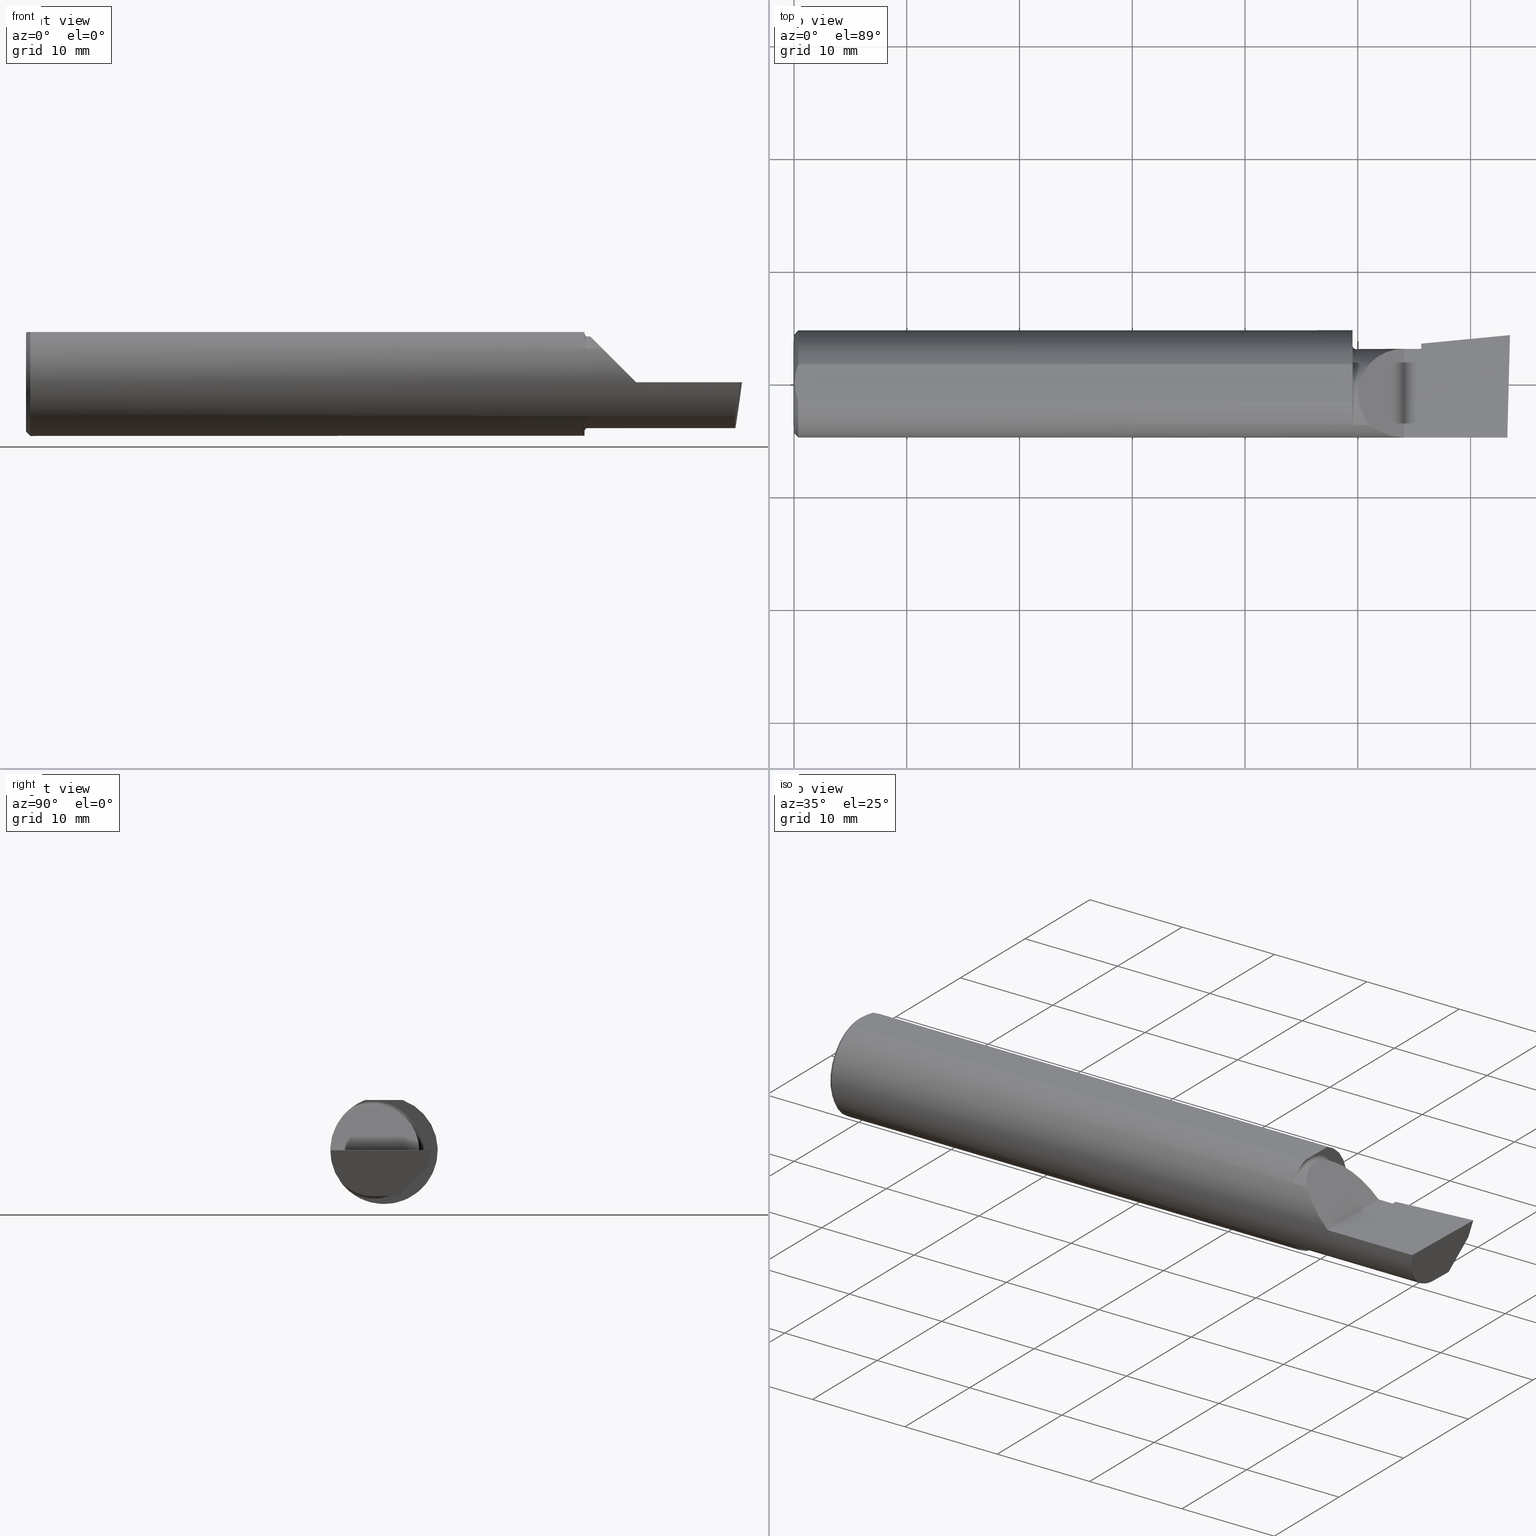
[diagram: canonical four-view strip — front | top / right | iso, engineering-drawing reading convention]
A machine part, canonical four-view strip (front | top / right | iso — engineering-drawing reading convention). The complete STEP part file that produces these views, byte-faithful:
ISO-10303-21;
HEADER;
FILE_DESCRIPTION (( 'STEP AP214' ),
    '1' );
FILE_NAME ('B360500.STEP',
    '2020-05-06T18:20:16',
    ( '' ),
    ( '' ),
    'SwSTEP 2.0',
    'SolidWorks 2018',
    '' );
FILE_SCHEMA (( 'AUTOMOTIVE_DESIGN' ));
ENDSEC;

DATA;
#1 = ORIENTED_EDGE ( 'NONE', *, *, #39, .F. ) ;
#2 = EDGE_LOOP ( 'NONE', ( #42, #467 ) ) ;
#3 = ORIENTED_EDGE ( 'NONE', *, *, #189, .T. ) ;
#4 = DIRECTION ( 'NONE',  ( -6.829619984160658816E-18, -1.000000000000000000, 0.0000000000000000000 ) ) ;
#5 = EDGE_CURVE ( 'NONE', #141, #226, #373, .T. ) ;
#6 = DIRECTION ( 'NONE',  ( 1.000000000000000000, 0.0000000000000000000, 0.0000000000000000000 ) ) ;
#7 = EDGE_CURVE ( 'NONE', #239, #587, #112, .T. ) ;
#8 = EDGE_LOOP ( 'NONE', ( #43, #38, #304, #400, #542, #413, #258, #424, #107, #454 ) ) ;
#9 = VERTEX_POINT ( 'NONE', #123 ) ;
#10 = DIRECTION ( 'NONE',  ( -1.000000000000000000, 6.829619984160658046E-18, 0.0000000000000000000 ) ) ;
#11 = LINE ( 'NONE', #372, #162 ) ;
#12 = AXIS2_PLACEMENT_3D ( 'NONE', #197, #356, #567 ) ;
#13 = CARTESIAN_POINT ( 'NONE',  ( 1.958780002058964076, -0.1452129146512406155, 0.1183784924451706522 ) ) ;
#14 = PLANE ( 'NONE',  #482 ) ;
#15 = ORIENTED_EDGE ( 'NONE', *, *, #328, .F. ) ;
#16 = CARTESIAN_POINT ( 'NONE',  ( 0.01499999999999999424, 0.0000000000000000000, 0.0000000000000000000 ) ) ;
#17 = DIRECTION ( 'NONE',  ( -0.06894566448119622548, 0.7160281025913035613, -0.6946583704589933683 ) ) ;
#18 = CARTESIAN_POINT ( 'NONE',  ( 0.01499999999999999424, 0.0000000000000000000, 0.0000000000000000000 ) ) ;
#19 = ADVANCED_FACE ( 'NONE', ( #104 ), #333, .F. ) ;
#20 = ORIENTED_EDGE ( 'NONE', *, *, #535, .F. ) ;
#21 = FACE_OUTER_BOUND ( 'NONE', #484, .T. ) ;
#22 = DIMENSIONAL_EXPONENTS ( 1.000000000000000000, 0.0000000000000000000, 0.0000000000000000000, 0.0000000000000000000, 0.0000000000000000000, 0.0000000000000000000, 0.0000000000000000000 ) ;
#23 = EDGE_CURVE ( 'NONE', #203, #224, #77, .T. ) ;
#24 = CARTESIAN_POINT ( 'NONE',  ( 0.01125230581755086272, 0.05532998191409922023, 0.1753500000000000059 ) ) ;
#25 = ORIENTED_EDGE ( 'NONE', *, *, #292, .F. ) ;
#26 = SURFACE_STYLE_USAGE ( .BOTH. , #103 ) ;
#27 = PRESENTATION_LAYER_ASSIGNMENT (  '', '', ( #426 ) ) ;
#28 = PRODUCT_RELATED_PRODUCT_CATEGORY ( 'part', '', ( #430 ) ) ;
#29 = CARTESIAN_POINT ( 'NONE',  ( 1.959999999999999964, -0.03739999999999997493, 0.0000000000000000000 ) ) ;
#30 = DIRECTION ( 'NONE',  ( -4.755568962650852027E-18, -0.6963153109074922131, -0.7177360153954949196 ) ) ;
#31 = EDGE_CURVE ( 'NONE', #9, #97, #578, .T. ) ;
#32 = CARTESIAN_POINT ( 'NONE',  ( 2.477223734188808368, -0.1454917112299465021, -0.1180346748349054287 ) ) ;
#33 = CARTESIAN_POINT ( 'NONE',  ( 0.008244775919947424855, 0.04453482769755855164, 0.1753499999999999504 ) ) ;
#34 = CARTESIAN_POINT ( 'NONE',  ( 2.189999999999999947, 0.1039332780936034623, -0.07900565447499380278 ) ) ;
#35 = VECTOR ( 'NONE', #410, 39.37007874015748143 ) ;
#36 = CARTESIAN_POINT ( 'NONE',  ( 2.500000000000000000, 0.2373500000000000332, 0.1753499999999999504 ) ) ;
#37 = LINE ( 'NONE', #416, #441 ) ;
#38 = ORIENTED_EDGE ( 'NONE', *, *, #115, .T. ) ;
#39 = EDGE_CURVE ( 'NONE', #553, #524, #259, .T. ) ;
#40 = CARTESIAN_POINT ( 'NONE',  ( 2.492483720199198949, 0.1538199878950242960, -0.05760614975163731027 ) ) ;
#41 = DIRECTION ( 'NONE',  ( -1.000000000000000000, -0.0000000000000000000, -0.0000000000000000000 ) ) ;
#42 = ORIENTED_EDGE ( 'NONE', *, *, #322, .T. ) ;
#43 = ORIENTED_EDGE ( 'NONE', *, *, #337, .F. ) ;
#44 = DIRECTION ( 'NONE',  ( 0.02617694830791552144, 0.9996573249755561497, -2.665804247648098212E-18 ) ) ;
#45 = LINE ( 'NONE', #48, #479 ) ;
#46 = CARTESIAN_POINT ( 'NONE',  ( 2.500000000000000000, -0.2500000000000000555, 6.829619984160658046E-17 ) ) ;
#47 = LINE ( 'NONE', #71, #171 ) ;
#48 = CARTESIAN_POINT ( 'NONE',  ( 2.189999999999999947, 0.1039332780936034623, -0.07900565447499380278 ) ) ;
#49 = EDGE_CURVE ( 'NONE', #141, #159, #173, .T. ) ;
#50 = CARTESIAN_POINT ( 'NONE',  ( 1.957909242887170498, -0.1445870704379410010, -0.1191421054870966528 ) ) ;
#51 = ORIENTED_EDGE ( 'NONE', *, *, #198, .T. ) ;
#52 = ADVANCED_FACE ( 'NONE', ( #533 ), #559, .T. ) ;
#53 = EDGE_CURVE ( 'NONE', #501, #553, #591, .T. ) ;
#54 = CARTESIAN_POINT ( 'NONE',  ( 1.950483388365423787, -0.1180160148311101415, -0.1458664675357417562 ) ) ;
#55 = CARTESIAN_POINT ( 'NONE',  ( 1.959343186359710165, -0.1454917112302220872, 0.1180346748345677127 ) ) ;
#56 = DIRECTION ( 'NONE',  ( 0.0000000000000000000, -1.000000000000000000, 0.0000000000000000000 ) ) ;
#57 = EDGE_LOOP ( 'NONE', ( #471, #437, #177, #397, #25, #398 ) ) ;
#58 = ORIENTED_EDGE ( 'NONE', *, *, #154, .T. ) ;
#59 = CARTESIAN_POINT ( 'NONE',  ( 0.004115035183746292881, 0.02255629470626744487, 0.1753499999999999781 ) ) ;
#60 = EDGE_CURVE ( 'NONE', #224, #432, #200, .T. ) ;
#61 = CARTESIAN_POINT ( 'NONE',  ( 0.0000000000000000000, 0.0000000000000000000, -0.1723499999999996424 ) ) ;
#62 = LINE ( 'NONE', #271, #256 ) ;
#63 = ORIENTED_EDGE ( 'NONE', *, *, #557, .T. ) ;
#64 = ORIENTED_EDGE ( 'NONE', *, *, #189, .F. ) ;
#65 = PLANE ( 'NONE',  #85 ) ;
#66 = EDGE_CURVE ( 'NONE', #99, #215, #118, .T. ) ;
#67 = EDGE_LOOP ( 'NONE', ( #157, #20, #202 ) ) ;
#68 = DIRECTION ( 'NONE',  ( -6.829619984160658046E-18, -1.000000000000000000, 0.0000000000000000000 ) ) ;
#69 = EDGE_CURVE ( 'NONE', #581, #432, #62, .T. ) ;
#70 = ORIENTED_EDGE ( 'NONE', *, *, #386, .F. ) ;
#71 = CARTESIAN_POINT ( 'NONE',  ( 1.093080678464946939E-18, 0.1226499999999999535, 3.267291166268304703E-16 ) ) ;
#72 = CARTESIAN_POINT ( 'NONE',  ( 2.189999999999999947, -0.2500000000000000555, 1.003418815229743595E-16 ) ) ;
#73 = LINE ( 'NONE', #34, #319 ) ;
#74 = DIRECTION ( 'NONE',  ( -0.0000000000000000000, 0.0000000000000000000, 1.000000000000000000 ) ) ;
#75 = UNCERTAINTY_MEASURE_WITH_UNIT (LENGTH_MEASURE( 1.000000000000000082E-05 ), #273, 'distance_accuracy_value', 'NONE');
#76 =( NAMED_UNIT ( * ) PLANE_ANGLE_UNIT ( ) SI_UNIT ( $, .RADIAN. ) );
#77 = LINE ( 'NONE', #40, #94 ) ;
#78 = EDGE_CURVE ( 'NONE', #159, #524, #84, .T. ) ;
#79 = CARTESIAN_POINT ( 'NONE',  ( 2.474893613600468445, -0.03740000000000000269, -0.1600499999999999701 ) ) ;
#80 = LENGTH_MEASURE_WITH_UNIT ( LENGTH_MEASURE( 0.02539999999999999897 ), #158 );
#81 = CARTESIAN_POINT ( 'NONE',  ( 2.075000000000000178, -0.1454917112299465021, -0.1180346748349054287 ) ) ;
#82 = LINE ( 'NONE', #463, #552 ) ;
#83 = AXIS2_PLACEMENT_3D ( 'NONE', #293, #434, #121 ) ;
#84 = LINE ( 'NONE', #447, #35 ) ;
#85 = AXIS2_PLACEMENT_3D ( 'NONE', #36, #406, #142 ) ;
#86 = CARTESIAN_POINT ( 'NONE',  ( 1.952845212421890020, -0.1330145888620355987, 0.1320338710448782094 ) ) ;
#87 = ORIENTED_EDGE ( 'NONE', *, *, #60, .F. ) ;
#88 = DIRECTION ( 'NONE',  ( 0.1240019227989986178, 0.3022330132596678376, 0.9451342385281217284 ) ) ;
#89 = ORIENTED_EDGE ( 'NONE', *, *, #115, .F. ) ;
#90 = DIRECTION ( 'NONE',  ( 0.0000000000000000000, -1.000000000000000000, 0.0000000000000000000 ) ) ;
#91 = CARTESIAN_POINT ( 'NONE',  ( 0.01499999999999999424, 0.0000000000000000000, -0.1873499999999999888 ) ) ;
#92 = DIRECTION ( 'NONE',  ( 0.0000000000000000000, 1.000000000000000000, 0.0000000000000000000 ) ) ;
#93 = ADVANCED_FACE ( 'NONE', ( #458 ), #549, .F. ) ;
#94 = VECTOR ( 'NONE', #129, 39.37007874015748854 ) ;
#95 = DIRECTION ( 'NONE',  ( 1.000000000000000000, -6.829619984160658046E-18, 0.0000000000000000000 ) ) ;
#96 = PRODUCT_DEFINITION_CONTEXT ( 'detailed design', #269, 'design' ) ;
#97 = VERTEX_POINT ( 'NONE', #287 ) ;
#98 = FACE_OUTER_BOUND ( 'NONE', #193, .T. ) ;
#99 = VERTEX_POINT ( 'NONE', #111 ) ;
#100 = DIRECTION ( 'NONE',  ( 0.0000000000000000000, 0.6963153109074924352, 0.7177360153954949196 ) ) ;
#101 = ADVANCED_FACE ( 'NONE', ( #296 ), #238, .F. ) ;
#102 = CARTESIAN_POINT ( 'NONE',  ( 1.949999999999999956, -0.1013606951871659639, 0.1575627873933893863 ) ) ;
#103 = SURFACE_SIDE_STYLE ('',( #368 ) ) ;
#104 = FACE_OUTER_BOUND ( 'NONE', #518, .T. ) ;
#105 = AXIS2_PLACEMENT_3D ( 'NONE', #537, #164, #146 ) ;
#106 = VERTEX_POINT ( 'NONE', #116 ) ;
#107 = ORIENTED_EDGE ( 'NONE', *, *, #331, .T. ) ;
#108 = COLOUR_RGB ( '',0.7529411764705882248, 0.7529411764705882248, 0.7529411764705882248 ) ;
#109 = MECHANICAL_DESIGN_GEOMETRIC_PRESENTATION_REPRESENTATION (  '', ( #426 ), #350 ) ;
#110 = CARTESIAN_POINT ( 'NONE',  ( 0.01499999999999997863, -0.06597272163553657975, 0.1753499999999999781 ) ) ;
#111 = CARTESIAN_POINT ( 'NONE',  ( 2.189999999999999947, 0.1226499999999999674, 3.267291166268305196E-16 ) ) ;
#112 = LINE ( 'NONE', #516, #551 ) ;
#113 = CARTESIAN_POINT ( 'NONE',  ( 0.0000000000000000000, 2.202527268266512578E-17, 0.1723499999999996424 ) ) ;
#114 = CARTESIAN_POINT ( 'NONE',  ( 1.959999999999999964, -0.1454917112299459192, 0.1180346748349059144 ) ) ;
#115 = EDGE_CURVE ( 'NONE', #106, #264, #405, .T. ) ;
#116 = CARTESIAN_POINT ( 'NONE',  ( 2.477223734188808368, -0.1454917112299465021, -0.1180346748349054287 ) ) ;
#117 = CARTESIAN_POINT ( 'NONE',  ( 0.01499999999999999424, 0.0000000000000000000, 0.0000000000000000000 ) ) ;
#118 = LINE ( 'NONE', #72, #207 ) ;
#119 = VECTOR ( 'NONE', #355, 39.37007874015748143 ) ;
#120 = EDGE_LOOP ( 'NONE', ( #233, #240, #417, #460, #369 ) ) ;
#121 = DIRECTION ( 'NONE',  ( -0.7071067811865511255, 0.0000000000000000000, 0.7071067811865437980 ) ) ;
#122 = CARTESIAN_POINT ( 'NONE',  ( 1.958770022656896037, -0.1452078353828883672, -0.1183847404910809836 ) ) ;
#123 = CARTESIAN_POINT ( 'NONE',  ( 2.474893613600468445, -0.03740000000000000269, -0.1600499999999999701 ) ) ;
#124 = CARTESIAN_POINT ( 'NONE',  ( 2.492127980275578913, 0.1514633278254541859, -0.05999999999999999084 ) ) ;
#125 = ORIENTED_EDGE ( 'NONE', *, *, #23, .T. ) ;
#126 = EDGE_CURVE ( 'NONE', #185, #127, #45, .T. ) ;
#127 = VERTEX_POINT ( 'NONE', #528 ) ;
#128 = CARTESIAN_POINT ( 'NONE',  ( 1.902393788885672565, -0.02584108761840661975, 0.2276062111143251077 ) ) ;
#129 = DIRECTION ( 'NONE',  ( 0.1053106618242490577, 0.6976485211320153645, 0.7086580314005129777 ) ) ;
#130 = CARTESIAN_POINT ( 'NONE',  ( 1.959999999999999964, -0.1454917112299459747, -0.1180346748349059005 ) ) ;
#131 = AXIS2_PLACEMENT_3D ( 'NONE', #339, #506, #326 ) ;
#132 = DIRECTION ( 'NONE',  ( -1.000000000000000000, -0.0000000000000000000, -0.0000000000000000000 ) ) ;
#133 = EDGE_CURVE ( 'NONE', #203, #9, #556, .T. ) ;
#134 = ORIENTED_EDGE ( 'NONE', *, *, #508, .T. ) ;
#135 = AXIS2_PLACEMENT_3D ( 'NONE', #489, #453, #340 ) ;
#136 = FACE_OUTER_BOUND ( 'NONE', #486, .T. ) ;
#137 = CARTESIAN_POINT ( 'NONE',  ( 1.956664569472227777, -0.1431262185210681326, -0.1208975608635242949 ) ) ;
#138 = AXIS2_PLACEMENT_3D ( 'NONE', #317, #74, #192 ) ;
#139 = FILL_AREA_STYLE ('',( #554 ) ) ;
#140 = CARTESIAN_POINT ( 'NONE',  ( 0.0000000000000000000, -0.03739999999999998881, 0.0000000000000000000 ) ) ;
#141 = VERTEX_POINT ( 'NONE', #61 ) ;
#142 = DIRECTION ( 'NONE',  ( 0.0000000000000000000, 1.000000000000000000, -1.438723400918613551E-16 ) ) ;
#143 = LINE ( 'NONE', #510, #307 ) ;
#144 = CIRCLE ( 'NONE', #300, 0.1700499999999999512 ) ;
#145 = CIRCLE ( 'NONE', #490, 0.1600499999999999701 ) ;
#146 = DIRECTION ( 'NONE',  ( 1.000000000000000000, 0.0000000000000000000, 0.0000000000000000000 ) ) ;
#147 = ADVANCED_FACE ( 'NONE', ( #267 ), #277, .T. ) ;
#148 = CARTESIAN_POINT ( 'NONE',  ( 2.011965325165096630, -0.1454917112299495829, 0.1180346748349020841 ) ) ;
#149 =( GEOMETRIC_REPRESENTATION_CONTEXT ( 3 ) GLOBAL_UNCERTAINTY_ASSIGNED_CONTEXT ( ( #457 ) ) GLOBAL_UNIT_ASSIGNED_CONTEXT ( ( #359, #76, #190 ) ) REPRESENTATION_CONTEXT ( 'NONE', 'WORKASPACE' ) );
#150 = ORIENTED_EDGE ( 'NONE', *, *, #328, .T. ) ;
#151 = LINE ( 'NONE', #214, #569 ) ;
#152 = PLANE ( 'NONE',  #367 ) ;
#153 =( NAMED_UNIT ( * ) SI_UNIT ( $, .STERADIAN. ) SOLID_ANGLE_UNIT ( ) );
#154 = EDGE_CURVE ( 'NONE', #501, #343, #204, .T. ) ;
#155 = CARTESIAN_POINT ( 'NONE',  ( 0.0000000000000000000, 0.0000000000000000000, 0.0000000000000000000 ) ) ;
#156 = PRODUCT_DEFINITION ( 'UNKNOWN', '', #344, #96 ) ;
#157 = ORIENTED_EDGE ( 'NONE', *, *, #257, .F. ) ;
#158 =( LENGTH_UNIT ( ) NAMED_UNIT ( * ) SI_UNIT ( $, .METRE. ) );
#159 = VERTEX_POINT ( 'NONE', #113 ) ;
#160 = FACE_OUTER_BOUND ( 'NONE', #419, .T. ) ;
#161 = EDGE_CURVE ( 'NONE', #524, #288, #582, .T. ) ;
#162 = VECTOR ( 'NONE', #448, 39.37007874015748143 ) ;
#163 = DIRECTION ( 'NONE',  ( 0.0000000000000000000, -1.000000000000000000, 0.0000000000000000000 ) ) ;
#164 = DIRECTION ( 'NONE',  ( 0.0000000000000000000, 0.0000000000000000000, 1.000000000000000000 ) ) ;
#165 = ORIENTED_EDGE ( 'NONE', *, *, #49, .T. ) ;
#166 = DIRECTION ( 'NONE',  ( 0.0000000000000000000, 0.0000000000000000000, 1.000000000000000000 ) ) ;
#167 =( GEOMETRIC_REPRESENTATION_CONTEXT ( 3 ) GLOBAL_UNCERTAINTY_ASSIGNED_CONTEXT ( ( #201 ) ) GLOBAL_UNIT_ASSIGNED_CONTEXT ( ( #577, #593, #446 ) ) REPRESENTATION_CONTEXT ( 'NONE', 'WORKASPACE' ) );
#168 = ORIENTED_EDGE ( 'NONE', *, *, #23, .F. ) ;
#169 = DIRECTION ( 'NONE',  ( -6.829619984160658046E-18, -1.000000000000000000, 0.0000000000000000000 ) ) ;
#170 = EDGE_CURVE ( 'NONE', #343, #493, #144, .T. ) ;
#171 = VECTOR ( 'NONE', #297, 39.37007874015748143 ) ;
#172 = DIRECTION ( 'NONE',  ( 0.0000000000000000000, 0.0000000000000000000, 1.000000000000000000 ) ) ;
#173 = CIRCLE ( 'NONE', #346, 0.1723499999999996424 ) ;
#174 = CARTESIAN_POINT ( 'NONE',  ( 1.954992410154055671, -0.1399157128067675115, -0.1246181391956575207 ) ) ;
#175 = ORIENTED_EDGE ( 'NONE', *, *, #495, .F. ) ;
#176 = DIRECTION ( 'NONE',  ( -1.000000000000000000, 6.829619984160658046E-18, -0.0000000000000000000 ) ) ;
#177 = ORIENTED_EDGE ( 'NONE', *, *, #505, .F. ) ;
#178 = LINE ( 'NONE', #213, #276 ) ;
#179 = DIRECTION ( 'NONE',  ( -6.829619984160658046E-18, -1.000000000000000000, 0.0000000000000000000 ) ) ;
#180 = CARTESIAN_POINT ( 'NONE',  ( 2.500188977433833504, 0.1711105994646693884, 0.001440373173034959625 ) ) ;
#181 = PRODUCT_CONTEXT ( 'NONE', #395, 'mechanical' ) ;
#182 = CARTESIAN_POINT ( 'NONE',  ( 2.189999999999999947, 0.09838681685089194218, -0.08472274115904374070 ) ) ;
#183 = AXIS2_PLACEMENT_3D ( 'NONE', #237, #377, #536 ) ;
#184 = DIRECTION ( 'NONE',  ( 0.0000000000000000000, 1.000000000000000000, 0.0000000000000000000 ) ) ;
#185 = VERTEX_POINT ( 'NONE', #230 ) ;
#186 = AXIS2_PLACEMENT_3D ( 'NONE', #155, #6, #409 ) ;
#187 = CARTESIAN_POINT ( 'NONE',  ( 2.129999999999999893, -0.1873499999999999888, 1.065442715258197396E-16 ) ) ;
#188 = MANIFOLD_SOLID_BREP ( 'C741EA0A-60D3-416e-B0B6-B22296563735-GAAFaceID8', #242 ) ;
#189 = EDGE_CURVE ( 'NONE', #226, #553, #290, .T. ) ;
#190 =( NAMED_UNIT ( * ) SI_UNIT ( $, .STERADIAN. ) SOLID_ANGLE_UNIT ( ) );
#191 = ADVANCED_FACE ( 'NONE', ( #160 ), #390, .T. ) ;
#192 = DIRECTION ( 'NONE',  ( 1.000000000000000000, 0.0000000000000000000, 0.0000000000000000000 ) ) ;
#193 = EDGE_LOOP ( 'NONE', ( #168, #336, #306, #274, #334, #425 ) ) ;
#194 = CONICAL_SURFACE ( 'NONE', #12, 0.1873499999999999888, 0.7853981633974602694 ) ;
#195 = ORIENTED_EDGE ( 'NONE', *, *, #161, .F. ) ;
#196 = CARTESIAN_POINT ( 'NONE',  ( 0.004093196532652216939, -0.02240707710020816909, 0.1753499999999999504 ) ) ;
#197 = CARTESIAN_POINT ( 'NONE',  ( 0.01499999999999999424, 0.0000000000000000000, 0.0000000000000000000 ) ) ;
#198 = EDGE_CURVE ( 'NONE', #97, #127, #143, .T. ) ;
#199 = CARTESIAN_POINT ( 'NONE',  ( 3.377502344341257155E-32, -0.1873499999999999610, 3.267291166268304703E-16 ) ) ;
#200 = LINE ( 'NONE', #180, #310 ) ;
#201 = UNCERTAINTY_MEASURE_WITH_UNIT (LENGTH_MEASURE( 1.000000000000000082E-05 ), #577, 'distance_accuracy_value', 'NONE');
#202 = ORIENTED_EDGE ( 'NONE', *, *, #483, .T. ) ;
#203 = VERTEX_POINT ( 'NONE', #404 ) ;
#204 = CIRCLE ( 'NONE', #243, 0.1873499999999999888 ) ;
#205 = PRESENTATION_LAYER_ASSIGNMENT (  '', '', ( #206 ) ) ;
#206 = STYLED_ITEM ( 'NONE', ( #562 ), #573 ) ;
#207 = VECTOR ( 'NONE', #462, 39.37007874015748143 ) ;
#208 = CARTESIAN_POINT ( 'NONE',  ( 0.0000000000000000000, 0.0000000000000000000, 0.0000000000000000000 ) ) ;
#209 = ORIENTED_EDGE ( 'NONE', *, *, #444, .T. ) ;
#210 = AXIS2_PLACEMENT_3D ( 'NONE', #140, #515, #4 ) ;
#211 = EDGE_LOOP ( 'NONE', ( #150, #544, #209, #364 ) ) ;
#212 = CARTESIAN_POINT ( 'NONE',  ( 2.472657716785286119, -0.1026153499216720943, -0.1643501480114536728 ) ) ;
#213 = CARTESIAN_POINT ( 'NONE',  ( 0.0000000000000000000, 0.06597272163553663527, 0.1753499999999999781 ) ) ;
#214 = CARTESIAN_POINT ( 'NONE',  ( 2.491169618080469217, 0.05430702260361124772, -0.1600499999999999701 ) ) ;
#215 = VERTEX_POINT ( 'NONE', #255 ) ;
#216 = VECTOR ( 'NONE', #312, 39.37007874015748143 ) ;
#217 = CARTESIAN_POINT ( 'NONE',  ( 1.954404192622242409, -0.1382376748423442825, -0.1264781021717289455 ) ) ;
#218 = VERTEX_POINT ( 'NONE', #301 ) ;
#219 = SURFACE_STYLE_FILL_AREA ( #351 ) ;
#220 = PLANE ( 'NONE',  #502 ) ;
#221 = CIRCLE ( 'NONE', #330, 0.1873499999999999888 ) ;
#222 = CARTESIAN_POINT ( 'NONE',  ( 2.189999999999999947, -0.03740000000000000269, 0.0000000000000000000 ) ) ;
#223 = CARTESIAN_POINT ( 'NONE',  ( 1.949999999999999956, -0.1013606951871659639, -0.1575627873933893863 ) ) ;
#224 = VERTEX_POINT ( 'NONE', #124 ) ;
#225 = CARTESIAN_POINT ( 'NONE',  ( 2.511712141217646632, 0.1533490680423130470, -0.05999999999999999084 ) ) ;
#226 = VERTEX_POINT ( 'NONE', #545 ) ;
#227 = CARTESIAN_POINT ( 'NONE',  ( 1.952858161161656891, -0.1330631366558192585, -0.1319833113027353566 ) ) ;
#228 = CARTESIAN_POINT ( 'NONE',  ( 0.0000000000000000000, 0.0000000000000000000, 0.0000000000000000000 ) ) ;
#229 = CARTESIAN_POINT ( 'NONE',  ( 2.189999999999999947, 0.1408003950587628228, 0.0000000000000000000 ) ) ;
#230 = CARTESIAN_POINT ( 'NONE',  ( 2.189999999999999947, 0.05139684578702525403, -0.1331582617725060591 ) ) ;
#231 = FACE_OUTER_BOUND ( 'NONE', #57, .T. ) ;
#232 = DIRECTION ( 'NONE',  ( 0.7071067811865390240, 0.0000000000000000000, -0.7071067811865560104 ) ) ;
#233 = ORIENTED_EDGE ( 'NONE', *, *, #262, .F. ) ;
#234 = VECTOR ( 'NONE', #348, 39.37007874015748143 ) ;
#235 = EDGE_CURVE ( 'NONE', #288, #570, #178, .T. ) ;
#236 = FILL_AREA_STYLE_COLOUR ( '', #108 ) ;
#237 = CARTESIAN_POINT ( 'NONE',  ( 0.0000000000000000000, 0.0000000000000000000, 0.0000000000000000000 ) ) ;
#238 = TOROIDAL_SURFACE ( 'NONE', #470, 0.1700499999999999512, 0.009999999999999807654 ) ;
#239 = VERTEX_POINT ( 'NONE', #391 ) ;
#240 = ORIENTED_EDGE ( 'NONE', *, *, #78, .T. ) ;
#241 = CARTESIAN_POINT ( 'NONE',  ( 1.967758842172324663, 0.1226499999999999674, 0.1622411578276735378 ) ) ;
#242 = CLOSED_SHELL ( 'NONE', ( #383, #295, #475, #19, #191, #252, #474, #93, #284, #481, #101, #420, #52, #147, #571, #250, #385 ) ) ;
#243 = AXIS2_PLACEMENT_3D ( 'NONE', #539, #95, #184 ) ;
#244 = CIRCLE ( 'NONE', #473, 0.1600499999999999701 ) ;
#245 = APPLICATION_PROTOCOL_DEFINITION ( 'draft international standard', 'automotive_design', 1998, #395 ) ;
#246 = CONICAL_SURFACE ( 'NONE', #381, 0.1873499999999999888, 0.7853981633974602694 ) ;
#247 = DIRECTION ( 'NONE',  ( -1.000000000000000000, -0.0000000000000000000, -0.0000000000000000000 ) ) ;
#248 = ORIENTED_EDGE ( 'NONE', *, *, #5, .T. ) ;
#249 = CARTESIAN_POINT ( 'NONE',  ( 0.01499999999999999424, 0.06597272163553663527, 0.1753499999999999781 ) ) ;
#250 = ADVANCED_FACE ( 'NONE', ( #268 ), #575, .F. ) ;
#251 = AXIS2_PLACEMENT_3D ( 'NONE', #507, #411, #546 ) ;
#252 = ADVANCED_FACE ( 'NONE', ( #136 ), #65, .F. ) ;
#253 = DIRECTION ( 'NONE',  ( -6.829619984160658046E-18, -1.000000000000000000, 1.438723400918613551E-16 ) ) ;
#254 = FACE_OUTER_BOUND ( 'NONE', #509, .T. ) ;
#255 = CARTESIAN_POINT ( 'NONE',  ( 2.189999999999999947, 0.1408003950587674857, 3.286754617377316716E-16 ) ) ;
#256 = VECTOR ( 'NONE', #44, 39.37007874015748854 ) ;
#257 = EDGE_CURVE ( 'NONE', #218, #375, #547, .T. ) ;
#258 = ORIENTED_EDGE ( 'NONE', *, *, #294, .T. ) ;
#259 = B_SPLINE_CURVE_WITH_KNOTS ( 'NONE', 3,
 ( #588, #540, #450, #196, #285, #374 ),
 .UNSPECIFIED., .F., .F.,
 ( 4, 2, 4 ),
 ( 0.001779942938356815062, 0.002629978419973711019, 0.003480013901590607410 ),
 .UNSPECIFIED. ) ;
#260 = CARTESIAN_POINT ( 'NONE',  ( 2.500000000000034195, 0.1706500000000318595, 9.290684216734176359E-14 ) ) ;
#261 = CARTESIAN_POINT ( 'NONE',  ( 1.949999999999999956, -0.03740000000000000269, 0.0000000000000000000 ) ) ;
#262 = EDGE_CURVE ( 'NONE', #159, #141, #520, .T. ) ;
#263 = CARTESIAN_POINT ( 'NONE',  ( 2.086590019116437045, -0.1873499999999999888, 0.04340998088356271684 ) ) ;
#264 = VERTEX_POINT ( 'NONE', #130 ) ;
#265 = EDGE_LOOP ( 'NONE', ( #504, #555, #58, #418 ) ) ;
#266 = ORIENTED_EDGE ( 'NONE', *, *, #66, .T. ) ;
#267 = FACE_OUTER_BOUND ( 'NONE', #526, .T. ) ;
#268 = FACE_OUTER_BOUND ( 'NONE', #2, .T. ) ;
#269 = APPLICATION_CONTEXT ( 'automotive_design' ) ;
#270 = FACE_OUTER_BOUND ( 'NONE', #574, .T. ) ;
#271 = CARTESIAN_POINT ( 'NONE',  ( 2.488992440003207296, -0.2497117568972554158, 6.943408617627041469E-17 ) ) ;
#272 = CARTESIAN_POINT ( 'NONE',  ( 1.959999999999999964, -0.1454917112299459192, 0.1180346748349059144 ) ) ;
#273 =( CONVERSION_BASED_UNIT ( 'INCH', #80 ) LENGTH_UNIT ( ) NAMED_UNIT ( #563 ) );
#274 = ORIENTED_EDGE ( 'NONE', *, *, #371, .F. ) ;
#275 = CARTESIAN_POINT ( 'NONE',  ( 2.490625440078237940, -0.1873499999999999888, 6.926778495256700803E-17 ) ) ;
#276 = VECTOR ( 'NONE', #589, 39.37007874015748143 ) ;
#277 = PLANE ( 'NONE',  #251 ) ;
#278 = VECTOR ( 'NONE', #305, 39.37007874015748854 ) ;
#279 = CARTESIAN_POINT ( 'NONE',  ( 2.480648201915109485, -0.1728409665178087251, -0.08432347972837191119 ) ) ;
#280 = ORIENTED_EDGE ( 'NONE', *, *, #393, .F. ) ;
#281 = CARTESIAN_POINT ( 'NONE',  ( 1.957567572594821836, -0.1442269357022580301, -0.1195781817710038913 ) ) ;
#282 = DIRECTION ( 'NONE',  ( -1.000000000000000000, 5.691349986800549142E-18, -0.0000000000000000000 ) ) ;
#283 = PLANE ( 'NONE',  #186 ) ;
#284 = ADVANCED_FACE ( 'NONE', ( #254 ), #283, .F. ) ;
#285 = CARTESIAN_POINT ( 'NONE',  ( 0.003000000000000172667, -0.01126410975715121283, 0.1753500000000000059 ) ) ;
#286 = ORIENTED_EDGE ( 'NONE', *, *, #438, .T. ) ;
#287 = CARTESIAN_POINT ( 'NONE',  ( 2.189999999999999947, -0.03740000000000000269, -0.1600499999999999701 ) ) ;
#288 = VERTEX_POINT ( 'NONE', #382 ) ;
#289 = CARTESIAN_POINT ( 'NONE',  ( 1.956674049009440752, -0.1431412424162798736, 0.1208797671938532381 ) ) ;
#290 = CIRCLE ( 'NONE', #353, 0.1873499999999999888 ) ;
#291 =( BOUNDED_CURVE ( )  B_SPLINE_CURVE ( 3, ( #530, #512, #550, #79 ),
 .UNSPECIFIED., .F., .F. ) 
 B_SPLINE_CURVE_WITH_KNOTS ( ( 4, 4 ),
 ( 5.751779107031791405, 6.493234751459990406 ),
 .UNSPECIFIED. ) 
 CURVE ( )  GEOMETRIC_REPRESENTATION_ITEM ( )  RATIONAL_B_SPLINE_CURVE ( ( 1.000000000000000000, 0.9547092712975354667, 0.9547092712975354667, 1.000000000000000000 ) ) 
 REPRESENTATION_ITEM ( '' )  );
#292 = EDGE_CURVE ( 'NONE', #375, #99, #47, .T. ) ;
#293 = CARTESIAN_POINT ( 'NONE',  ( 2.129999999999999893, -0.2500000000000000555, 1.065442715258197396E-16 ) ) ;
#294 = EDGE_CURVE ( 'NONE', #99, #587, #358, .T. ) ;
#295 = ADVANCED_FACE ( 'NONE', ( #21 ), #152, .T. ) ;
#296 = FACE_OUTER_BOUND ( 'NONE', #211, .T. ) ;
#297 = DIRECTION ( 'NONE',  ( 1.000000000000000000, -6.829619984160658046E-18, 0.0000000000000000000 ) ) ;
#298 = EDGE_LOOP ( 'NONE', ( #389, #455, #469 ) ) ;
#299 = CARTESIAN_POINT ( 'NONE',  ( 1.952152469637250531, -0.1294082664154919127, -0.1355718222394689809 ) ) ;
#300 = AXIS2_PLACEMENT_3D ( 'NONE', #261, #598, #90 ) ;
#301 = CARTESIAN_POINT ( 'NONE',  ( 2.011965325165096630, -0.1454917112299495829, 0.1180346748349020841 ) ) ;
#302 = AXIS2_PLACEMENT_3D ( 'NONE', #18, #323, #172 ) ;
#303 = CARTESIAN_POINT ( 'NONE',  ( 2.474910817315467693, -0.03674301662998676749, -0.1600499999999999701 ) ) ;
#304 = ORIENTED_EDGE ( 'NONE', *, *, #421, .F. ) ;
#305 = DIRECTION ( 'NONE',  ( -0.02617694830791551450, -0.9996573249755561497, 0.0000000000000000000 ) ) ;
#306 = ORIENTED_EDGE ( 'NONE', *, *, #126, .F. ) ;
#307 = VECTOR ( 'NONE', #92, 39.37007874015748143 ) ;
#308 = B_SPLINE_CURVE_WITH_KNOTS ( 'NONE', 3,
 ( #360, #532, #122, #50, #281, #137, #443, #174, #217, #227, #299, #54, #347, #435 ),
 .UNSPECIFIED., .F., .F.,
 ( 4, 2, 2, 2, 2, 2, 4 ),
 ( 1.967643395654746293E-07, 5.001319782656564559E-05, 9.982963131356581887E-05, 0.0001994624982875669108, 0.0003987282322355699621, 0.0007972597001315706979, 0.001594322635923571627 ),
 .UNSPECIFIED. ) ;
#309 = CARTESIAN_POINT ( 'NONE',  ( 1.957580800664965759, -0.1442412736056263578, 0.1195608849622529779 ) ) ;
#310 = VECTOR ( 'NONE', #88, 39.37007874015748854 ) ;
#311 = ORIENTED_EDGE ( 'NONE', *, *, #154, .F. ) ;
#312 = DIRECTION ( 'NONE',  ( -0.0000000000000000000, 1.000000000000000000, -0.0000000000000000000 ) ) ;
#313 = CARTESIAN_POINT ( 'NONE',  ( 2.485293537526806595, -0.1873500000000000998, -0.04340998088356429196 ) ) ;
#314 = DIRECTION ( 'NONE',  ( 0.0000000000000000000, 0.0000000000000000000, -1.000000000000000000 ) ) ;
#315 = LENGTH_MEASURE_WITH_UNIT ( LENGTH_MEASURE( 0.02539999999999999897 ), #523 );
#316 = DIRECTION ( 'NONE',  ( -4.755568962650852027E-18, -0.6963153109074922131, -0.7177360153954949196 ) ) ;
#317 = CARTESIAN_POINT ( 'NONE',  ( 2.500000000000000000, -0.03740000000000000269, -0.1600499999999999701 ) ) ;
#318 = ORIENTED_EDGE ( 'NONE', *, *, #505, .T. ) ;
#319 = VECTOR ( 'NONE', #329, 39.37007874015748854 ) ;
#320 = DIRECTION ( 'NONE',  ( 1.000000000000000000, -6.829619984160658046E-18, 0.0000000000000000000 ) ) ;
#321 = PLANE ( 'NONE',  #135 ) ;
#322 = EDGE_CURVE ( 'NONE', #185, #587, #244, .T. ) ;
#323 = DIRECTION ( 'NONE',  ( -1.000000000000000000, -0.0000000000000000000, -0.0000000000000000000 ) ) ;
#324 = AXIS2_PLACEMENT_3D ( 'NONE', #584, #496, #56 ) ;
#325 = ORIENTED_EDGE ( 'NONE', *, *, #566, .F. ) ;
#326 = DIRECTION ( 'NONE',  ( -6.829619984160658046E-18, -1.000000000000000000, 0.0000000000000000000 ) ) ;
#327 = ORIENTED_EDGE ( 'NONE', *, *, #53, .T. ) ;
#328 = EDGE_CURVE ( 'NONE', #343, #451, #531, .T. ) ;
#329 = DIRECTION ( 'NONE',  ( -4.755568962650852027E-18, -0.6963153109074922131, -0.7177360153954949196 ) ) ;
#330 = AXIS2_PLACEMENT_3D ( 'NONE', #492, #320, #564 ) ;
#331 = EDGE_CURVE ( 'NONE', #185, #97, #145, .T. ) ;
#332 = DIRECTION ( 'NONE',  ( -0.9922060308645401783, 0.02598182930473518990, 0.1218693434052012803 ) ) ;
#333 = PLANE ( 'NONE',  #138 ) ;
#334 = ORIENTED_EDGE ( 'NONE', *, *, #7, .F. ) ;
#335 = LINE ( 'NONE', #380, #234 ) ;
#336 = ORIENTED_EDGE ( 'NONE', *, *, #495, .T. ) ;
#337 = EDGE_CURVE ( 'NONE', #106, #9, #291, .T. ) ;
#338 = FACE_OUTER_BOUND ( 'NONE', #120, .T. ) ;
#339 = CARTESIAN_POINT ( 'NONE',  ( 2.189999999999999947, 0.1408003950587628228, 0.0000000000000000000 ) ) ;
#340 = DIRECTION ( 'NONE',  ( 6.829619984160658046E-18, 1.000000000000000000, 0.0000000000000000000 ) ) ;
#341 = ORIENTED_EDGE ( 'NONE', *, *, #262, .T. ) ;
#342 = FACE_OUTER_BOUND ( 'NONE', #298, .T. ) ;
#343 = VERTEX_POINT ( 'NONE', #102 ) ;
#344 = PRODUCT_DEFINITION_FORMATION_WITH_SPECIFIED_SOURCE ( 'ANY', '', #430, .NOT_KNOWN. ) ;
#345 = ORIENTED_EDGE ( 'NONE', *, *, #535, .T. ) ;
#346 = AXIS2_PLACEMENT_3D ( 'NONE', #228, #247, #497 ) ;
#347 = CARTESIAN_POINT ( 'NONE',  ( 1.949999999999999956, -0.1099295023601651045, -0.1520504436074708032 ) ) ;
#348 = DIRECTION ( 'NONE',  ( 0.9953961983671787417, 0.09584575252022456415, -1.028972571603813720E-16 ) ) ;
#349 = ORIENTED_EDGE ( 'NONE', *, *, #133, .F. ) ;
#350 =( GEOMETRIC_REPRESENTATION_CONTEXT ( 3 ) GLOBAL_UNCERTAINTY_ASSIGNED_CONTEXT ( ( #75 ) ) GLOBAL_UNIT_ASSIGNED_CONTEXT ( ( #273, #498, #153 ) ) REPRESENTATION_CONTEXT ( 'NONE', 'WORKASPACE' ) );
#351 = FILL_AREA_STYLE ('',( #236 ) ) ;
#352 = CIRCLE ( 'NONE', #302, 0.1873499999999999888 ) ;
#353 = AXIS2_PLACEMENT_3D ( 'NONE', #117, #41, #166 ) ;
#354 = ORIENTED_EDGE ( 'NONE', *, *, #393, .T. ) ;
#355 = DIRECTION ( 'NONE',  ( -1.000000000000000000, 6.829619984160658046E-18, -0.0000000000000000000 ) ) ;
#356 = DIRECTION ( 'NONE',  ( 1.000000000000000000, 0.0000000000000000000, 0.0000000000000000000 ) ) ;
#357 = EDGE_LOOP ( 'NONE', ( #476, #511, #248, #3, #499 ) ) ;
#358 = CIRCLE ( 'NONE', #585, 0.1600499999999999701 ) ;
#359 =( CONVERSION_BASED_UNIT ( 'INCH', #402 ) LENGTH_UNIT ( ) NAMED_UNIT ( #378 ) );
#360 = CARTESIAN_POINT ( 'NONE',  ( 1.959999999999999964, -0.1454917112299459747, -0.1180346748349059005 ) ) ;
#361 = FACE_OUTER_BOUND ( 'NONE', #357, .T. ) ;
#362 = DIRECTION ( 'NONE',  ( 0.0000000000000000000, -1.000000000000000000, 0.0000000000000000000 ) ) ;
#363 = CARTESIAN_POINT ( 'NONE',  ( 0.0000000000000000000, -0.06597272163553657975, 0.1753499999999999781 ) ) ;
#364 = ORIENTED_EDGE ( 'NONE', *, *, #170, .F. ) ;
#365 = ORIENTED_EDGE ( 'NONE', *, *, #337, .T. ) ;
#366 = AXIS2_PLACEMENT_3D ( 'NONE', #212, #332, #583 ) ;
#367 = AXIS2_PLACEMENT_3D ( 'NONE', #394, #10, #169 ) ;
#368 = SURFACE_STYLE_FILL_AREA ( #139 ) ;
#369 = ORIENTED_EDGE ( 'NONE', *, *, #5, .F. ) ;
#370 = CARTESIAN_POINT ( 'NONE',  ( 0.003000000000000169632, 0.01127363201155560934, 0.1753499999999999781 ) ) ;
#371 = EDGE_CURVE ( 'NONE', #587, #185, #73, .T. ) ;
#372 = CARTESIAN_POINT ( 'NONE',  ( 2.075000000000000178, -0.1454917112299465021, 0.1180346748349054287 ) ) ;
#373 = LINE ( 'NONE', #91, #491 ) ;
#374 = CARTESIAN_POINT ( 'NONE',  ( 0.003000000000000218638, 2.334609556160449697E-17, 0.1753499999999999781 ) ) ;
#375 = VERTEX_POINT ( 'NONE', #543 ) ;
#376 = VECTOR ( 'NONE', #548, 39.37007874015748143 ) ;
#377 = DIRECTION ( 'NONE',  ( -1.000000000000000000, -0.0000000000000000000, -0.0000000000000000000 ) ) ;
#378 = DIMENSIONAL_EXPONENTS ( 1.000000000000000000, 0.0000000000000000000, 0.0000000000000000000, 0.0000000000000000000, 0.0000000000000000000, 0.0000000000000000000, 0.0000000000000000000 ) ;
#379 = CARTESIAN_POINT ( 'NONE',  ( 2.129999999999999893, -0.1873499999999999888, 1.065442715258197396E-16 ) ) ;
#380 = CARTESIAN_POINT ( 'NONE',  ( 0.3393181374772690773, -0.03739999999999999575, 2.916527262322783564E-16 ) ) ;
#381 = AXIS2_PLACEMENT_3D ( 'NONE', #16, #423, #314 ) ;
#382 = CARTESIAN_POINT ( 'NONE',  ( 0.01499999999999999424, 0.06597272163553663527, 0.1753499999999999781 ) ) ;
#383 = ADVANCED_FACE ( 'NONE', ( #338 ), #246, .T. ) ;
#384 = CARTESIAN_POINT ( 'NONE',  ( 2.129999999999999893, 0.1226499999999998841, 1.065442715258197396E-16 ) ) ;
#385 = ADVANCED_FACE ( 'NONE', ( #270 ), #529, .F. ) ;
#386 = EDGE_CURVE ( 'NONE', #493, #570, #221, .T. ) ;
#387 = CARTESIAN_POINT ( 'NONE',  ( 1.954402240695038540, -0.1382337250035439169, 0.1264828452200240372 ) ) ;
#388 = ORIENTED_EDGE ( 'NONE', *, *, #7, .T. ) ;
#389 = ORIENTED_EDGE ( 'NONE', *, *, #331, .F. ) ;
#390 = CYLINDRICAL_SURFACE ( 'NONE', #183, 0.1873499999999999888 ) ;
#391 = CARTESIAN_POINT ( 'NONE',  ( 2.189999999999999947, 0.1223717121708782080, -0.05999999999999999084 ) ) ;
#392 = ORIENTED_EDGE ( 'NONE', *, *, #133, .T. ) ;
#393 = EDGE_CURVE ( 'NONE', #215, #239, #82, .T. ) ;
#394 = CARTESIAN_POINT ( 'NONE',  ( 2.189999999999999947, 0.1408003950587628228, 0.0000000000000000000 ) ) ;
#395 = APPLICATION_CONTEXT ( 'automotive_design' ) ;
#396 = EDGE_CURVE ( 'NONE', #570, #501, #580, .T. ) ;
#397 = ORIENTED_EDGE ( 'NONE', *, *, #66, .F. ) ;
#398 = ORIENTED_EDGE ( 'NONE', *, *, #483, .F. ) ;
#399 = DIRECTION ( 'NONE',  ( -1.000000000000000000, -0.0000000000000000000, -0.0000000000000000000 ) ) ;
#400 = ORIENTED_EDGE ( 'NONE', *, *, #566, .T. ) ;
#401 = CARTESIAN_POINT ( 'NONE',  ( 1.954997648858496584, -0.1399294360413327887, 0.1246027428089602068 ) ) ;
#402 = LENGTH_MEASURE_WITH_UNIT ( LENGTH_MEASURE( 0.02539999999999999897 ), #459 );
#403 = AXIS2_PLACEMENT_3D ( 'NONE', #225, #17, #100 ) ;
#404 = CARTESIAN_POINT ( 'NONE',  ( 2.477259974483429161, 0.05296767626088545039, -0.1600499999999999701 ) ) ;
#405 = LINE ( 'NONE', #81, #119 ) ;
#406 = DIRECTION ( 'NONE',  ( 0.0000000000000000000, -1.438723400918613551E-16, -1.000000000000000000 ) ) ;
#407 = ORIENTED_EDGE ( 'NONE', *, *, #444, .F. ) ;
#408 = CARTESIAN_POINT ( 'NONE',  ( 2.129999999999999893, -0.2500000000000000555, 1.065442715258197396E-16 ) ) ;
#409 = DIRECTION ( 'NONE',  ( 0.0000000000000000000, 0.0000000000000000000, -1.000000000000000000 ) ) ;
#410 = DIRECTION ( 'NONE',  ( 0.7071067811865390240, 8.659560562355036396E-17, 0.7071067811865560104 ) ) ;
#411 = DIRECTION ( 'NONE',  ( -0.09165774897393337561, 0.9519021185660613282, -0.2923717047227304411 ) ) ;
#412 = LINE ( 'NONE', #199, #376 ) ;
#413 = ORIENTED_EDGE ( 'NONE', *, *, #292, .T. ) ;
#414 = SURFACE_SIDE_STYLE ('',( #219 ) ) ;
#415 = CARTESIAN_POINT ( 'NONE',  ( 2.011965325165096630, -0.1454917112299495829, 0.1180346748349020841 ) ) ;
#416 = CARTESIAN_POINT ( 'NONE',  ( 2.511712141217646632, 0.1533490680423130470, -0.05999999999999999084 ) ) ;
#417 = ORIENTED_EDGE ( 'NONE', *, *, #161, .T. ) ;
#418 = ORIENTED_EDGE ( 'NONE', *, *, #170, .T. ) ;
#419 = EDGE_LOOP ( 'NONE', ( #89, #286, #63, #345, #325, #15, #311, #327, #64, #478, #538, #70, #407 ) ) ;
#420 = ADVANCED_FACE ( 'NONE', ( #565 ), #321, .T. ) ;
#421 = EDGE_CURVE ( 'NONE', #451, #264, #468, .T. ) ;
#422 = CARTESIAN_POINT ( 'NONE',  ( 2.189999999999999947, -0.03740000000000000269, 0.0000000000000000000 ) ) ;
#423 = DIRECTION ( 'NONE',  ( 1.000000000000000000, 0.0000000000000000000, 0.0000000000000000000 ) ) ;
#424 = ORIENTED_EDGE ( 'NONE', *, *, #322, .F. ) ;
#425 = ORIENTED_EDGE ( 'NONE', *, *, #508, .F. ) ;
#426 = STYLED_ITEM ( 'NONE', ( #433 ), #188 ) ;
#427 = CARTESIAN_POINT ( 'NONE',  ( 1.950000000000000400, -0.1100056335683312903, 0.1520014681335481455 ) ) ;
#428 = DIRECTION ( 'NONE',  ( -1.000000000000000000, 0.0000000000000000000, 1.033731667140896077E-16 ) ) ;
#429 = EDGE_CURVE ( 'NONE', #288, #226, #352, .T. ) ;
#430 = PRODUCT ( 'B360500', 'B360500', '', ( #181 ) ) ;
#431 = ORIENTED_EDGE ( 'NONE', *, *, #294, .F. ) ;
#432 = VERTEX_POINT ( 'NONE', #260 ) ;
#433 = PRESENTATION_STYLE_ASSIGNMENT (( #561 ) ) ;
#434 = DIRECTION ( 'NONE',  ( -0.7071067811865439090, 0.0000000000000000000, -0.7071067811865512365 ) ) ;
#435 = CARTESIAN_POINT ( 'NONE',  ( 1.949999999999999956, -0.1013606951871659639, -0.1575627873933893863 ) ) ;
#436 =( BOUNDED_CURVE ( )  B_SPLINE_CURVE ( 3, ( #32, #279, #313, #275 ),
 .UNSPECIFIED., .F., .F. ) 
 B_SPLINE_CURVE_WITH_KNOTS ( ( 4, 4 ),
 ( 0.6791649766272935818, 1.360746882514492606 ),
 .UNSPECIFIED. ) 
 CURVE ( )  GEOMETRIC_REPRESENTATION_ITEM ( )  RATIONAL_B_SPLINE_CURVE ( ( 1.000000000000000000, 0.9616603987079548332, 0.9616603987079548332, 1.000000000000000000 ) ) 
 REPRESENTATION_ITEM ( '' )  );
#437 = ORIENTED_EDGE ( 'NONE', *, *, #69, .T. ) ;
#438 = EDGE_CURVE ( 'NONE', #106, #581, #436, .T. ) ;
#439 = CARTESIAN_POINT ( 'NONE',  ( 0.003000000000000218638, 2.334609556160449697E-17, 0.1753499999999999781 ) ) ;
#440 = ORIENTED_EDGE ( 'NONE', *, *, #396, .F. ) ;
#441 = VECTOR ( 'NONE', #534, 39.37007874015748854 ) ;
#442 = ORIENTED_EDGE ( 'NONE', *, *, #235, .F. ) ;
#443 = CARTESIAN_POINT ( 'NONE',  ( 1.956208682939483579, -0.1423361566194918104, -0.1218275716760990057 ) ) ;
#444 = EDGE_CURVE ( 'NONE', #264, #493, #308, .T. ) ;
#445 = CARTESIAN_POINT ( 'NONE',  ( 2.045676520271630494, -0.1728409665178097521, 0.08432347972836901073 ) ) ;
#446 =( NAMED_UNIT ( * ) SI_UNIT ( $, .STERADIAN. ) SOLID_ANGLE_UNIT ( ) );
#447 = CARTESIAN_POINT ( 'NONE',  ( 0.01499999999999999424, 2.294375778202566330E-17, 0.1873499999999999888 ) ) ;
#448 = DIRECTION ( 'NONE',  ( 1.000000000000000000, -6.829619984160658046E-18, 0.0000000000000000000 ) ) ;
#449 = PLANE ( 'NONE',  #403 ) ;
#450 = CARTESIAN_POINT ( 'NONE',  ( 0.008227791779583789808, -0.04447712204611815878, 0.1753499999999999781 ) ) ;
#451 = VERTEX_POINT ( 'NONE', #272 ) ;
#452 = LINE ( 'NONE', #408, #216 ) ;
#453 = DIRECTION ( 'NONE',  ( 1.000000000000000000, -6.829619984160658046E-18, 0.0000000000000000000 ) ) ;
#454 = ORIENTED_EDGE ( 'NONE', *, *, #31, .F. ) ;
#455 = ORIENTED_EDGE ( 'NONE', *, *, #126, .T. ) ;
#456 = CARTESIAN_POINT ( 'NONE',  ( 1.956216587669450169, -0.1423502170013161428, 0.1218111458006553433 ) ) ;
#457 = UNCERTAINTY_MEASURE_WITH_UNIT (LENGTH_MEASURE( 1.000000000000000082E-05 ), #359, 'distance_accuracy_value', 'NONE');
#458 = FACE_OUTER_BOUND ( 'NONE', #67, .T. ) ;
#459 =( LENGTH_UNIT ( ) NAMED_UNIT ( * ) SI_UNIT ( $, .METRE. ) );
#460 = ORIENTED_EDGE ( 'NONE', *, *, #429, .T. ) ;
#461 = ORIENTED_EDGE ( 'NONE', *, *, #31, .T. ) ;
#462 = DIRECTION ( 'NONE',  ( 6.829619984160658816E-18, 1.000000000000000000, -7.059994452165177242E-34 ) ) ;
#463 = CARTESIAN_POINT ( 'NONE',  ( 2.189999999999999947, 0.1375075152821363667, -0.01072093908174519099 ) ) ;
#464 = CARTESIAN_POINT ( 'NONE',  ( 2.500000000000000000, -0.03740000000000000269, -0.1600499999999999701 ) ) ;
#465 = MECHANICAL_DESIGN_GEOMETRIC_PRESENTATION_REPRESENTATION (  '', ( #206 ), #149 ) ;
#466 = CARTESIAN_POINT ( 'NONE',  ( 2.189999999999999947, -0.03740000000000000269, 0.0000000000000000000 ) ) ;
#467 = ORIENTED_EDGE ( 'NONE', *, *, #371, .T. ) ;
#468 = CIRCLE ( 'NONE', #324, 0.1600499999999999701 ) ;
#469 = ORIENTED_EDGE ( 'NONE', *, *, #198, .F. ) ;
#470 = AXIS2_PLACEMENT_3D ( 'NONE', #29, #472, #179 ) ;
#471 = ORIENTED_EDGE ( 'NONE', *, *, #557, .F. ) ;
#472 = DIRECTION ( 'NONE',  ( -1.000000000000000000, 6.829619984160658046E-18, -0.0000000000000000000 ) ) ;
#473 = AXIS2_PLACEMENT_3D ( 'NONE', #466, #494, #480 ) ;
#474 = ADVANCED_FACE ( 'NONE', ( #231 ), #220, .F. ) ;
#475 = ADVANCED_FACE ( 'NONE', ( #342 ), #14, .T. ) ;
#476 = ORIENTED_EDGE ( 'NONE', *, *, #78, .F. ) ;
#477 = ORIENTED_EDGE ( 'NONE', *, *, #60, .T. ) ;
#478 = ORIENTED_EDGE ( 'NONE', *, *, #429, .F. ) ;
#479 = VECTOR ( 'NONE', #316, 39.37007874015748854 ) ;
#480 = DIRECTION ( 'NONE',  ( 0.0000000000000000000, -1.000000000000000000, 2.664535259100375697E-15 ) ) ;
#481 = ADVANCED_FACE ( 'NONE', ( #361 ), #194, .T. ) ;
#482 = AXIS2_PLACEMENT_3D ( 'NONE', #229, #558, #68 ) ;
#483 = EDGE_CURVE ( 'NONE', #568, #375, #452, .T. ) ;
#484 = EDGE_LOOP ( 'NONE', ( #266, #354, #388, #431 ) ) ;
#485 = VECTOR ( 'NONE', #253, 39.37007874015748143 ) ;
#486 = EDGE_LOOP ( 'NONE', ( #440, #442, #195, #1, #488 ) ) ;
#487 = CARTESIAN_POINT ( 'NONE',  ( 1.949999999999999956, -0.1013606951871659639, 0.1575627873933893863 ) ) ;
#488 = ORIENTED_EDGE ( 'NONE', *, *, #53, .F. ) ;
#489 = CARTESIAN_POINT ( 'NONE',  ( 1.949999999999999956, 0.1326499999999999624, 0.0000000000000000000 ) ) ;
#490 = AXIS2_PLACEMENT_3D ( 'NONE', #422, #590, #163 ) ;
#491 = VECTOR ( 'NONE', #232, 39.37007874015748143 ) ;
#492 = CARTESIAN_POINT ( 'NONE',  ( 1.949999999999999956, 0.0000000000000000000, 0.0000000000000000000 ) ) ;
#493 = VERTEX_POINT ( 'NONE', #223 ) ;
#494 = DIRECTION ( 'NONE',  ( 1.000000000000000000, -6.829619984160658046E-18, 0.0000000000000000000 ) ) ;
#495 = EDGE_CURVE ( 'NONE', #203, #127, #151, .T. ) ;
#496 = DIRECTION ( 'NONE',  ( -1.000000000000000000, 6.829619984160658046E-18, -0.0000000000000000000 ) ) ;
#497 = DIRECTION ( 'NONE',  ( 0.0000000000000000000, 0.0000000000000000000, 1.000000000000000000 ) ) ;
#498 =( NAMED_UNIT ( * ) PLANE_ANGLE_UNIT ( ) SI_UNIT ( $, .RADIAN. ) );
#499 = ORIENTED_EDGE ( 'NONE', *, *, #39, .T. ) ;
#500 = CARTESIAN_POINT ( 'NONE',  ( 1.949999999999999956, 0.06597272163553663527, 0.1753499999999999781 ) ) ;
#501 = VERTEX_POINT ( 'NONE', #572 ) ;
#502 = AXIS2_PLACEMENT_3D ( 'NONE', #46, #522, #428 ) ;
#503 = APPLICATION_PROTOCOL_DEFINITION ( 'draft international standard', 'automotive_design', 1998, #269 ) ;
#504 = ORIENTED_EDGE ( 'NONE', *, *, #386, .T. ) ;
#505 = EDGE_CURVE ( 'NONE', #215, #432, #335, .T. ) ;
#506 = DIRECTION ( 'NONE',  ( -1.000000000000000000, 6.829619984160658046E-18, 0.0000000000000000000 ) ) ;
#507 = CARTESIAN_POINT ( 'NONE',  ( 2.509953961983671267, 0.1716084575252020683, -6.829619984160658046E-17 ) ) ;
#508 = EDGE_CURVE ( 'NONE', #224, #239, #37, .T. ) ;
#509 = EDGE_LOOP ( 'NONE', ( #165, #341 ) ) ;
#510 = CARTESIAN_POINT ( 'NONE',  ( 2.189999999999999947, -0.03740000000000000269, -0.1600499999999999701 ) ) ;
#511 = ORIENTED_EDGE ( 'NONE', *, *, #49, .F. ) ;
#512 = CARTESIAN_POINT ( 'NONE',  ( 2.474646882977779683, -0.1156304438478837071, -0.1453804992321581779 ) ) ;
#513 = SHAPE_DEFINITION_REPRESENTATION ( #576, #573 ) ;
#514 = DIRECTION ( 'NONE',  ( -0.9953961983671800740, -0.09584575252021031166, 0.0000000000000000000 ) ) ;
#515 = DIRECTION ( 'NONE',  ( -1.000000000000000000, 6.829619984160658046E-18, -0.0000000000000000000 ) ) ;
#516 = CARTESIAN_POINT ( 'NONE',  ( 2.189999999999999947, 0.1039332780936034623, -0.07900565447499380278 ) ) ;
#517 = CARTESIAN_POINT ( 'NONE',  ( 1.952149571221041047, -0.1293863363941678835, 0.1355911774285947780 ) ) ;
#518 = EDGE_LOOP ( 'NONE', ( #175, #392, #461, #51 ) ) ;
#519 = ORIENTED_EDGE ( 'NONE', *, *, #69, .F. ) ;
#520 = CIRCLE ( 'NONE', #525, 0.1723499999999996424 ) ;
#521 = CARTESIAN_POINT ( 'NONE',  ( 0.003000000000000218638, 2.334609556160449697E-17, 0.1753499999999999781 ) ) ;
#522 = DIRECTION ( 'NONE',  ( -1.033731667140896077E-16, 0.0000000000000000000, -1.000000000000000000 ) ) ;
#523 =( LENGTH_UNIT ( ) NAMED_UNIT ( * ) SI_UNIT ( $, .METRE. ) );
#524 = VERTEX_POINT ( 'NONE', #439 ) ;
#525 = AXIS2_PLACEMENT_3D ( 'NONE', #208, #132, #594 ) ;
#526 = EDGE_LOOP ( 'NONE', ( #87, #134, #280, #318 ) ) ;
#527 = CARTESIAN_POINT ( 'NONE',  ( 1.957921033727478388, -0.1445976381173489367, 0.1191292621734223456 ) ) ;
#528 = CARTESIAN_POINT ( 'NONE',  ( 2.189999999999999947, 0.02530768673263090671, -0.1600499999999999701 ) ) ;
#529 = PLANE ( 'NONE',  #366 ) ;
#530 = CARTESIAN_POINT ( 'NONE',  ( 2.477223734188808368, -0.1454917112299465021, -0.1180346748349054287 ) ) ;
#531 = B_SPLINE_CURVE_WITH_KNOTS ( 'NONE', 3,
 ( #487, #427, #596, #517, #86, #387, #401, #456, #289, #309, #527, #13, #55, #114 ),
 .UNSPECIFIED., .F., .F.,
 ( 4, 2, 2, 2, 2, 2, 4 ),
 ( 0.0006605532644857109231, 0.001446564801351182903, 0.001839570569783919272, 0.002036073454000290276, 0.002134324896108479464, 0.002183450617162578829, 0.002232576338216678193 ),
 .UNSPECIFIED. ) ;
#532 = CARTESIAN_POINT ( 'NONE',  ( 1.959335809113330829, -0.1454917112299460302, -0.1180346748349059977 ) ) ;
#533 = FACE_OUTER_BOUND ( 'NONE', #8, .T. ) ;
#534 = DIRECTION ( 'NONE',  ( -0.9953961983671800740, -0.09584575252021031166, 0.0000000000000000000 ) ) ;
#535 = EDGE_CURVE ( 'NONE', #568, #218, #597, .T. ) ;
#536 = DIRECTION ( 'NONE',  ( 0.0000000000000000000, 0.0000000000000000000, 1.000000000000000000 ) ) ;
#537 = CARTESIAN_POINT ( 'NONE',  ( 0.0000000000000000000, 0.0000000000000000000, 0.0000000000000000000 ) ) ;
#538 = ORIENTED_EDGE ( 'NONE', *, *, #235, .T. ) ;
#539 = CARTESIAN_POINT ( 'NONE',  ( 1.949999999999999956, 0.0000000000000000000, 0.0000000000000000000 ) ) ;
#540 = CARTESIAN_POINT ( 'NONE',  ( 0.01128414053810044941, -0.05542038647445821781, 0.1753499999999999781 ) ) ;
#541 = CARTESIAN_POINT ( 'NONE',  ( 2.490625440078237940, -0.1873499999999999888, 6.926778495256700803E-17 ) ) ;
#542 = ORIENTED_EDGE ( 'NONE', *, *, #257, .T. ) ;
#543 = CARTESIAN_POINT ( 'NONE',  ( 2.129999999999999893, 0.1226499999999998841, 1.065442715258197396E-16 ) ) ;
#544 = ORIENTED_EDGE ( 'NONE', *, *, #421, .T. ) ;
#545 = CARTESIAN_POINT ( 'NONE',  ( 0.01499999999999999424, 0.0000000000000000000, -0.1873499999999999888 ) ) ;
#546 = DIRECTION ( 'NONE',  ( 0.0000000000000000000, 0.2936076258024061802, 0.9559260233253795702 ) ) ;
#547 =( BOUNDED_CURVE ( )  B_SPLINE_CURVE ( 3, ( #415, #128, #241, #384 ),
 .UNSPECIFIED., .F., .F. ) 
 B_SPLINE_CURVE_WITH_KNOTS ( ( 4, 4 ),
 ( 5.541729662751357921, 7.853981633974482790 ),
 .UNSPECIFIED. ) 
 CURVE ( )  GEOMETRIC_REPRESENTATION_ITEM ( )  RATIONAL_B_SPLINE_CURVE ( ( 1.000000000000000000, 0.6019254882129634332, 0.6019254882129634332, 1.000000000000000000 ) ) 
 REPRESENTATION_ITEM ( '' )  );
#548 = DIRECTION ( 'NONE',  ( -1.000000000000000000, -0.0000000000000000000, -0.0000000000000000000 ) ) ;
#549 = PLANE ( 'NONE',  #83 ) ;
#550 = CARTESIAN_POINT ( 'NONE',  ( 2.473833329693936101, -0.07789060880782651408, -0.1600499999999999701 ) ) ;
#551 = VECTOR ( 'NONE', #30, 39.37007874015748854 ) ;
#552 = VECTOR ( 'NONE', #579, 39.37007874015748143 ) ;
#553 = VERTEX_POINT ( 'NONE', #110 ) ;
#554 = FILL_AREA_STYLE_COLOUR ( '', #595 ) ;
#555 = ORIENTED_EDGE ( 'NONE', *, *, #396, .T. ) ;
#556 = LINE ( 'NONE', #303, #278 ) ;
#557 = EDGE_CURVE ( 'NONE', #581, #568, #412, .T. ) ;
#558 = DIRECTION ( 'NONE',  ( -1.000000000000000000, 6.829619984160658046E-18, 0.0000000000000000000 ) ) ;
#559 = CYLINDRICAL_SURFACE ( 'NONE', #210, 0.1600499999999999701 ) ;
#560 = ORIENTED_EDGE ( 'NONE', *, *, #438, .F. ) ;
#561 = SURFACE_STYLE_USAGE ( .BOTH. , #414 ) ;
#562 = PRESENTATION_STYLE_ASSIGNMENT (( #26 ) ) ;
#563 = DIMENSIONAL_EXPONENTS ( 1.000000000000000000, 0.0000000000000000000, 0.0000000000000000000, 0.0000000000000000000, 0.0000000000000000000, 0.0000000000000000000, 0.0000000000000000000 ) ;
#564 = DIRECTION ( 'NONE',  ( 0.0000000000000000000, 1.000000000000000000, 0.0000000000000000000 ) ) ;
#565 = FACE_OUTER_BOUND ( 'NONE', #265, .T. ) ;
#566 = EDGE_CURVE ( 'NONE', #451, #218, #11, .T. ) ;
#567 = DIRECTION ( 'NONE',  ( 0.0000000000000000000, 0.0000000000000000000, -1.000000000000000000 ) ) ;
#568 = VERTEX_POINT ( 'NONE', #379 ) ;
#569 = VECTOR ( 'NONE', #514, 39.37007874015748854 ) ;
#570 = VERTEX_POINT ( 'NONE', #500 ) ;
#571 = ADVANCED_FACE ( 'NONE', ( #98 ), #449, .T. ) ;
#572 = CARTESIAN_POINT ( 'NONE',  ( 1.949999999999999956, -0.06597272163553659363, 0.1753499999999999781 ) ) ;
#573 = ADVANCED_BREP_SHAPE_REPRESENTATION ( 'B360500', ( #188, #105 ), #167 ) ;
#574 = EDGE_LOOP ( 'NONE', ( #365, #349, #125, #477, #519, #560 ) ) ;
#575 = PLANE ( 'NONE',  #131 ) ;
#576 = PRODUCT_DEFINITION_SHAPE ( 'NONE', 'NONE',  #156 ) ;
#577 =( CONVERSION_BASED_UNIT ( 'INCH', #315 ) LENGTH_UNIT ( ) NAMED_UNIT ( #22 ) );
#578 = LINE ( 'NONE', #464, #599 ) ;
#579 = DIRECTION ( 'NONE',  ( -2.005228508682077821E-18, -0.2936076258024062358, -0.9559260233253795702 ) ) ;
#580 = LINE ( 'NONE', #592, #485 ) ;
#581 = VERTEX_POINT ( 'NONE', #541 ) ;
#582 = B_SPLINE_CURVE_WITH_KNOTS ( 'NONE', 3,
 ( #521, #370, #59, #33, #24, #249 ),
 .UNSPECIFIED., .F., .F.,
 ( 4, 2, 4 ),
 ( 0.003480013901590607410, 0.004330767971208083697, 0.005181522040825559984 ),
 .UNSPECIFIED. ) ;
#583 = DIRECTION ( 'NONE',  ( 0.1219104985253368356, 0.0000000000000000000, 0.9925410975618610410 ) ) ;
#584 = CARTESIAN_POINT ( 'NONE',  ( 1.959999999999999964, -0.03740000000000000269, 0.0000000000000000000 ) ) ;
#585 = AXIS2_PLACEMENT_3D ( 'NONE', #222, #176, #362 ) ;
#586 = VECTOR ( 'NONE', #399, 39.37007874015748143 ) ;
#587 = VERTEX_POINT ( 'NONE', #182 ) ;
#588 = CARTESIAN_POINT ( 'NONE',  ( 0.01499999999999997863, -0.06597272163553657975, 0.1753499999999999781 ) ) ;
#589 = DIRECTION ( 'NONE',  ( 1.000000000000000000, 0.0000000000000000000, 0.0000000000000000000 ) ) ;
#590 = DIRECTION ( 'NONE',  ( -1.000000000000000000, 6.829619984160658046E-18, -0.0000000000000000000 ) ) ;
#591 = LINE ( 'NONE', #363, #586 ) ;
#592 = CARTESIAN_POINT ( 'NONE',  ( 1.949999999999999956, 0.2373500000000000332, 0.1753499999999999504 ) ) ;
#593 =( NAMED_UNIT ( * ) PLANE_ANGLE_UNIT ( ) SI_UNIT ( $, .RADIAN. ) );
#594 = DIRECTION ( 'NONE',  ( 0.0000000000000000000, 0.0000000000000000000, 1.000000000000000000 ) ) ;
#595 = COLOUR_RGB ( '',0.7529411764705882248, 0.7529411764705882248, 0.7529411764705882248 ) ;
#596 = CARTESIAN_POINT ( 'NONE',  ( 1.950493306168248564, -0.1180879943980260305, 0.1458023451353286093 ) ) ;
#597 =( BOUNDED_CURVE ( )  B_SPLINE_CURVE ( 3, ( #187, #263, #445, #148 ),
 .UNSPECIFIED., .F., .T. ) 
 B_SPLINE_CURVE_WITH_KNOTS ( ( 4, 4 ),
 ( 4.712388980384689674, 5.393970886271864273 ),
 .UNSPECIFIED. ) 
 CURVE ( )  GEOMETRIC_REPRESENTATION_ITEM ( )  RATIONAL_B_SPLINE_CURVE ( ( 1.000000000000000000, 0.9616603987079574978, 0.9616603987079574978, 1.000000000000000000 ) ) 
 REPRESENTATION_ITEM ( '' )  );
#598 = DIRECTION ( 'NONE',  ( -1.000000000000000000, 6.829619984160658046E-18, -0.0000000000000000000 ) ) ;
#599 = VECTOR ( 'NONE', #282, 39.37007874015748143 ) ;
ENDSEC;
END-ISO-10303-21;
